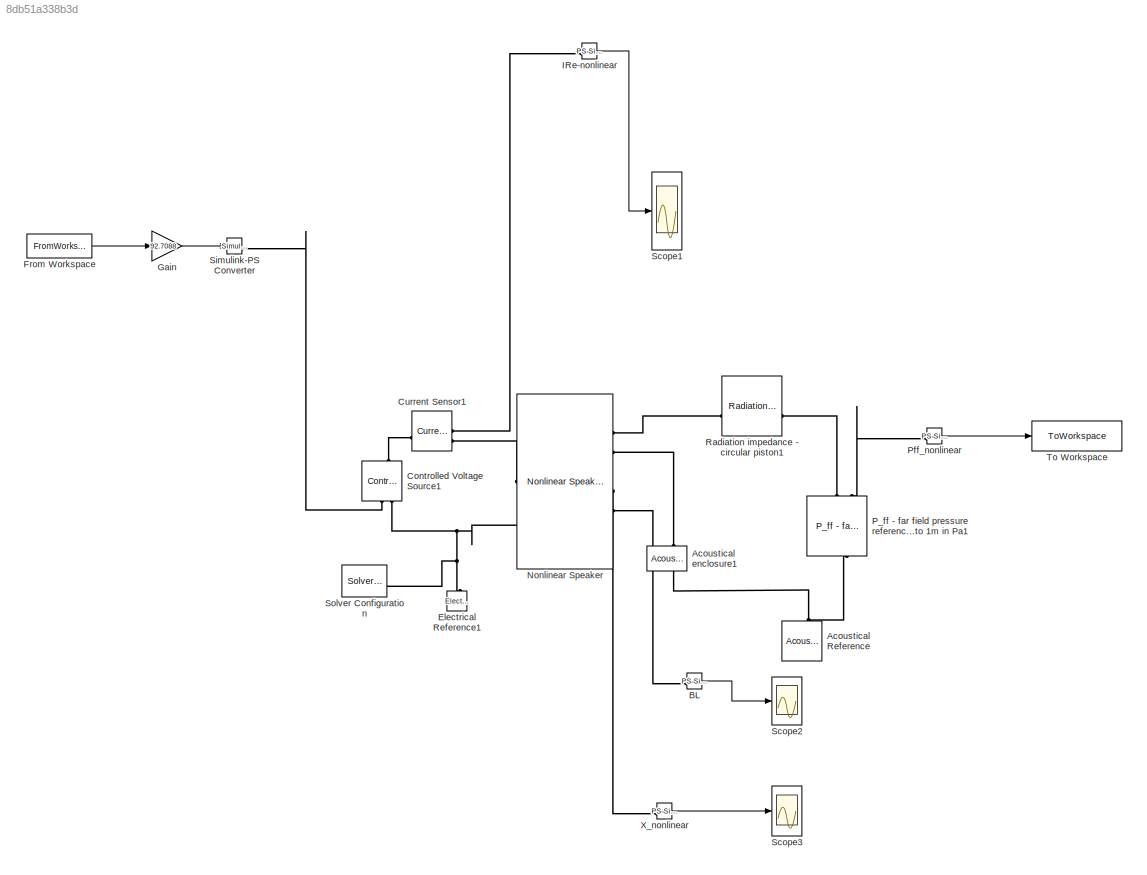
MODEL slx_8db51a338b3d
KIND model
CONFIG AbsTol = 1e-3
CONFIG EnableMultiTasking = off
CONFIG FixedStep = auto
CONFIG InitFcn = load('vars')\n
CONFIG MaxStep = 1e-4
CONFIG MinStep = auto
CONFIG RelTol = 1e-3
CONFIG SampleTimeConstraint = Unconstrained
CONFIG SolverName = daessc
CONFIG StartTime = 0.0
CONFIG StopTime = 9.9999375
BLOCK [Reference] Acoustical Reference  REF=acoustical_lib/Acoustical Elements/Acoustical Reference
  NameLocation = right
  SourceBlock = acoustical_lib/Acoustical Elements/Acoustical Reference
  SourceType = Acoustical Reference
BLOCK [Reference] Acoustical enclosure1  REF=acoustical_lib/Acoustical Elements/Acoustical enclosure
  NameLocation = left
  SourceBlock = acoustical_lib/Acoustical Elements/Acoustical enclosure
  SourceType = Acoustical enclosure
BLOCK [Reference] BL  REF=nesl_utility/PS-Simulink
Converter
  SourceBlock = nesl_utility/PS-Simulink\nConverter
  SourceType = PS-Simulink\nConverter
BLOCK [Reference] Controlled Voltage Source1  REF=fl_lib/Electrical/Electrical Sources/Controlled Voltage
Source
  NameLocation = right
  SourceBlock = fl_lib/Electrical/Electrical Sources/Controlled Voltage\nSource
  SourceType = Controlled Voltage\nSource
BLOCK [Reference] Current Sensor1  REF=fl_lib/Electrical/Electrical Sensors/Current Sensor
  SourceBlock = fl_lib/Electrical/Electrical Sensors/Current Sensor
  SourceType = Current Sensor
BLOCK [Reference] Electrical Reference1  REF=fl_lib/Electrical/Electrical Elements/Electrical Reference
  NameLocation = right
  SourceBlock = fl_lib/Electrical/Electrical Elements/Electrical Reference
  SourceType = Electrical Reference
BLOCK [FromWorkspace] From Workspace
  SampleTime = -1
  VariableName = x_forsimulink
BLOCK [Gain] Gain
  Gain = 92.7088
BLOCK [Reference] IRe-nonlinear  REF=nesl_utility/PS-Simulink
Converter
  SourceBlock = nesl_utility/PS-Simulink\nConverter
  SourceType = PS-Simulink\nConverter
BLOCK [Reference] Nonlinear Speaker  REF=SpeakerSubsystemLibrary_1_0_0/Nonlinear Speaker
  SourceBlock = SpeakerSubsystemLibrary_1_0_0/Nonlinear Speaker
BLOCK [Reference] P_ff - far field pressure referenced to 1m in Pa1  REF=acoustical_lib/Acoustical Elements/P_ff - far field
pressure referenced
to 1m in Pa
  NameLocation = left
  SourceBlock = acoustical_lib/Acoustical Elements/P_ff - far field\npressure referenced\nto 1m in Pa
  SourceType = P_ff - far field\npressure referenced\nto 1m in Pa
BLOCK [Reference] Pff_nonlinear  REF=nesl_utility/PS-Simulink
Converter
  SourceBlock = nesl_utility/PS-Simulink\nConverter
  SourceType = PS-Simulink\nConverter
BLOCK [Reference] Radiation impedance - circular piston1  REF=acoustical_lib/Acoustical Elements/Radiation impedance
- circular piston
  SourceBlock = acoustical_lib/Acoustical Elements/Radiation impedance\n- circular piston
  SourceType = Radiation impedance\n- circular piston
BLOCK [Scope] Scope1
  Floating = off
  NumInputPorts = 1
  ScopeSpecificationString = Simulink.scopes.TimeScopeBlockCfg('CurrentConfiguration', extmgr.ConfigurationSet(extmgr.Configuration('Core','General UI',true),extmgr.Configuration('Core','Source UI',true),extmgr.Configuration('Sources','WiredSimulink',true,'DataLoggingVariableName','ScopeData1'),extmgr.Configuration('Visuals','Time Domain',true,'SerializedDisplays',{struct('MinYLimReal','-20.33399','MaxYLimReal','22.99935','YL...<+1422ch>
BLOCK [Scope] Scope2
  Floating = off
  NumInputPorts = 1
  ScopeSpecificationString = Simulink.scopes.TimeScopeBlockCfg('CurrentConfiguration', extmgr.ConfigurationSet(extmgr.Configuration('Core','General UI',true),extmgr.Configuration('Core','Source UI',true),extmgr.Configuration('Sources','WiredSimulink',true,'DataLoggingVariableName','ScopeData1'),extmgr.Configuration('Visuals','Time Domain',true,'SerializedDisplays',{struct('MinYLimReal','4.39213','MaxYLimReal','5.4385','YLabel...<+1522ch>
BLOCK [Scope] Scope3
  Floating = off
  NumInputPorts = 1
  ScopeSpecificationString = Simulink.scopes.TimeScopeBlockCfg('CurrentConfiguration', extmgr.ConfigurationSet(extmgr.Configuration('Core','General UI',true),extmgr.Configuration('Core','Source UI',true),extmgr.Configuration('Sources','WiredSimulink',true,'DataLoggingVariableName','ScopeData2'),extmgr.Configuration('Visuals','Time Domain',true,'SerializedDisplays',{struct('MinYLimReal','-0.00724','MaxYLimReal','0.00709','YLab...<+1439ch>
BLOCK [Reference] Simulink-PS Converter  REF=nesl_utility/Simulink-PS
Converter
  NameLocation = right
  SourceBlock = nesl_utility/Simulink-PS\nConverter
  SourceType = Simulink-PS\nConverter
BLOCK [Reference] Solver Configuration  REF=nesl_utility/Solver
Configuration
  SourceBlock = nesl_utility/Solver\nConfiguration
  SourceType = Solver\nConfiguration
BLOCK [ToWorkspace] To Workspace
  FixptAsFi = on
  MaxDataPoints = inf
  SampleTime = 0.0000625
  VariableName = x_NL
BLOCK [Reference] X_nonlinear  REF=nesl_utility/PS-Simulink
Converter
  SourceBlock = nesl_utility/PS-Simulink\nConverter
  SourceType = PS-Simulink\nConverter
LINE BL:1 -> Scope2:1
LINE From Workspace:1 -> Gain:1
LINE Gain:1 -> Simulink-PS Converter:1
LINE IRe-nonlinear:1 -> Scope1:1
LINE Pff_nonlinear:1 -> To Workspace:1
LINE X_nonlinear:1 -> Scope3:1
PNET net1: Acoustical Reference:LConn1 -- Acoustical enclosure1:RConn1 -- P_ff - far field pressure referenced to 1m in Pa1:RConn1
PLINE Acoustical enclosure1:LConn1 -- Nonlinear Speaker:RConn2
PLINE BL:LConn1 -- Nonlinear Speaker:RConn5
PLINE Controlled Voltage Source1:LConn1 -- Current Sensor1:LConn1
PLINE Controlled Voltage Source1:RConn1 -- Simulink-PS Converter:RConn1
PNET net2: Controlled Voltage Source1:RConn2 -- Electrical Reference1:LConn1 -- Nonlinear Speaker:LConn2 -- Solver Configuration:RConn1
PLINE Current Sensor1:RConn1 -- IRe-nonlinear:LConn1
PLINE Current Sensor1:RConn2 -- Nonlinear Speaker:LConn1
PLINE Nonlinear Speaker:RConn1 -- Radiation impedance - circular piston1:LConn1
PLINE Nonlinear Speaker:RConn4 -- X_nonlinear:LConn1
PLINE P_ff - far field pressure referenced to 1m in Pa1:LConn1 -- Radiation impedance - circular piston1:RConn1
PLINE P_ff - far field pressure referenced to 1m in Pa1:LConn2 -- Pff_nonlinear:LConn1
note: PNET lines group multi-terminal physical nets as a canonical sorted terminal list (undirected conserving connections); 2-terminal nets keep the pairwise PLINE form
